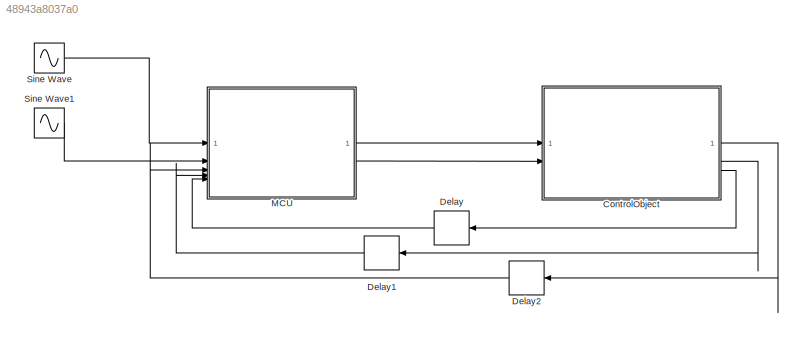
MODEL slx_48943a8037a0
KIND model
CONFIG AbsTol = auto
CONFIG EnableMultiTasking = off
CONFIG FixedStep = 0.001
CONFIG MaxStep = auto
CONFIG MinStep = auto
CONFIG RelTol = 1e-3
CONFIG SampleTimeConstraint = Unconstrained
CONFIG SolverName = ode1be
CONFIG StartTime = 0.0
CONFIG StopTime = 10
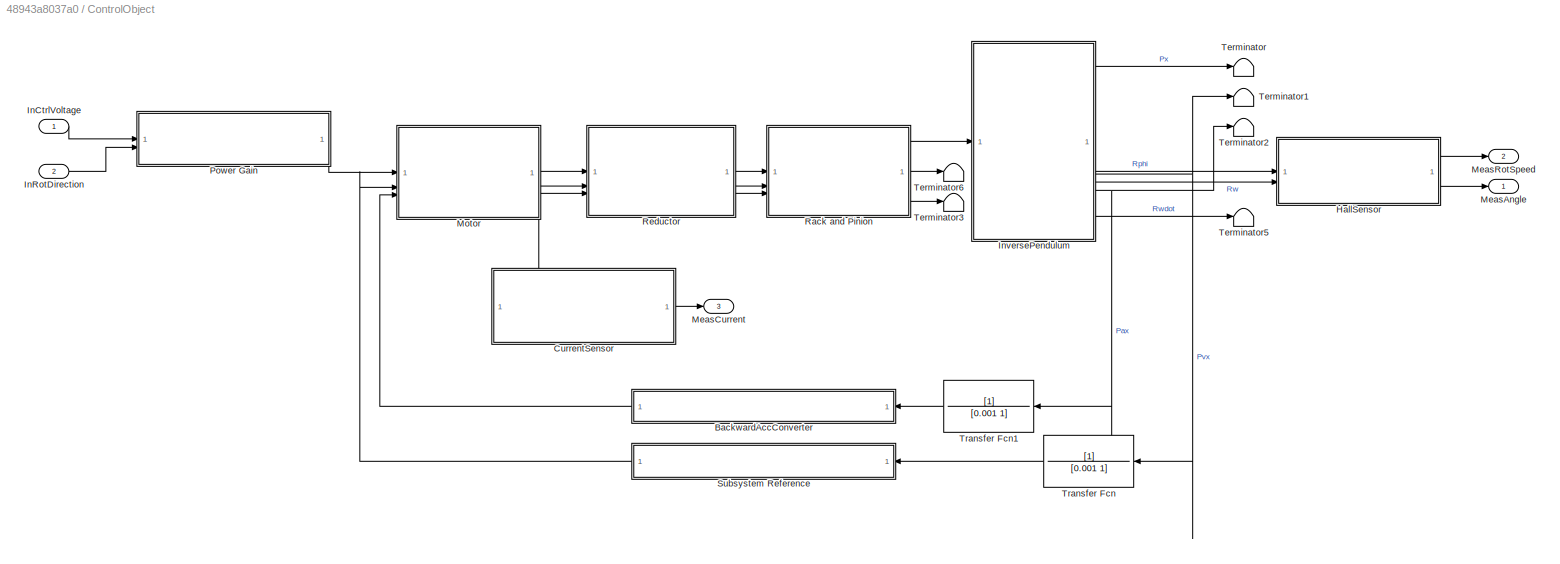
BLOCK [SubSystem] ControlObject
  TreatAsAtomicUnit = on
BLOCK [SubSystem] ControlObject/BackwardAccConverter
  ReferencedSubsystem = BackwardConverter
BLOCK [SubSystem] ControlObject/CurrentSensor
  ReferencedSubsystem = CurrentSensor
BLOCK [SubSystem] ControlObject/HallSensor
  ReferencedSubsystem = HallSensor
BLOCK [Inport] ControlObject/InCtrlVoltage
BLOCK [Inport] ControlObject/InRotDirection
  Port = 2
BLOCK [SubSystem] ControlObject/InversePendulum
  ReferencedSubsystem = InversePendulum
BLOCK [Outport] ControlObject/MeasAngle
BLOCK [Outport] ControlObject/MeasCurrent
  Port = 3
BLOCK [Outport] ControlObject/MeasRotSpeed
  Port = 2
BLOCK [SubSystem] ControlObject/Motor
  NameLocation = top
  PortSchema = {"entries":[{"content":{"sides":[{"content":{"connectorIds":["In1","In2","In3"]},"type":"ConnectorPlacement.EquallySpacedRectSide","uuid":"cf1f6aad-091f-4111-96d2-0ff15b1f9161"},{"content":{"connectorIds":["Out1","Out2","Out3"],"side":"RIGHT"},"type":"ConnectorPlacement.EquallySpacedRectSide","uuid":"4922c734-6a98-471f-9783-d3bdbedc5471"},{"content":{"connectorIds":[],"side":"TOP"},"type":"Connect...<+416ch>
  ReferencedSubsystem = DCMotor
BLOCK [SubSystem] ControlObject/Power Gain
  ReferencedSubsystem = PowerGain
BLOCK [SubSystem] ControlObject/Rack and Pinion
  ReferencedSubsystem = RackAndPinion
BLOCK [SubSystem] ControlObject/Reductor
  ReferencedSubsystem = Reductor
BLOCK [SubSystem] ControlObject/Subsystem Reference
  NameLocation = top
  ReferencedSubsystem = BackwardConverter
BLOCK [Terminator] ControlObject/Terminator
BLOCK [Terminator] ControlObject/Terminator1
BLOCK [Terminator] ControlObject/Terminator2
BLOCK [Terminator] ControlObject/Terminator3
BLOCK [Terminator] ControlObject/Terminator5
BLOCK [Terminator] ControlObject/Terminator6
BLOCK [TransferFcn] ControlObject/Transfer Fcn
  Denominator = [0.001 1]
  NameLocation = top
BLOCK [TransferFcn] ControlObject/Transfer Fcn1
  Denominator = [0.001 1]
  NameLocation = top
BLOCK [Delay] Delay
  DelayLength = 1
  InputPortMap = u0
  NameLocation = top
BLOCK [Delay] Delay1
  DelayLength = 1
  InputPortMap = u0
  NameLocation = top
BLOCK [Delay] Delay2
  DelayLength = 1
  InputPortMap = u0
  NameLocation = top
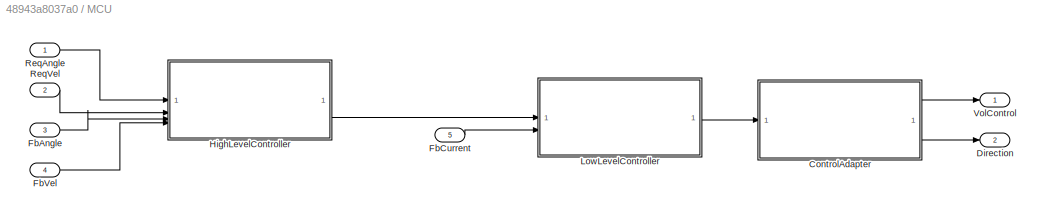
BLOCK [SubSystem] MCU
  TreatAsAtomicUnit = on
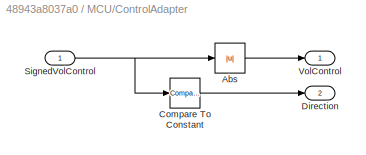
BLOCK [SubSystem] MCU/ControlAdapter
BLOCK [Abs] MCU/ControlAdapter/Abs
  SaturateOnIntegerOverflow = off
BLOCK [Reference] MCU/ControlAdapter/Compare To Constant  REF=simulink/Logic and Bit
Operations/Compare
To Constant
  SourceBlock = simulink/Logic and Bit\nOperations/Compare\nTo Constant
  SourceType = Compare To Constant
BLOCK [Outport] MCU/ControlAdapter/Direction
  Port = 2
BLOCK [Inport] MCU/ControlAdapter/SignedVolControl
BLOCK [Outport] MCU/ControlAdapter/VolControl
BLOCK [Outport] MCU/Direction
  Port = 2
BLOCK [Inport] MCU/FbAngle
  Port = 3
BLOCK [Inport] MCU/FbCurrent
  Port = 5
BLOCK [Inport] MCU/FbVel
  Port = 4
BLOCK [SubSystem] MCU/HighLevelController
  ReferencedSubsystem = HighLevelController
BLOCK [SubSystem] MCU/LowLevelController
  ReferencedSubsystem = LowLevelController
BLOCK [Inport] MCU/ReqAngle
BLOCK [Inport] MCU/ReqVel
  Port = 2
BLOCK [Outport] MCU/VolControl
BLOCK [Sin] Sine Wave
  Amplitude = 0.5
  Frequency = 10
  SampleTime = 0
BLOCK [Sin] Sine Wave1
  Amplitude = 0.5
  Frequency = 10
  Phase = pi/2
  SampleTime = 0
LINE ControlObject/BackwardAccConverter:1 -> ControlObject/Motor:3
LINE ControlObject/CurrentSensor:1 -> ControlObject/MeasCurrent:1
LINE ControlObject/HallSensor:1 -> ControlObject/MeasRotSpeed:1
LINE ControlObject/HallSensor:2 -> ControlObject/MeasAngle:1
LINE ControlObject/InCtrlVoltage:1 -> ControlObject/Power Gain:1
LINE ControlObject/InRotDirection:1 -> ControlObject/Power Gain:2
LINE ControlObject/InversePendulum:1 -> ControlObject/Terminator:1
NET ControlObject/InversePendulum:2 -> ControlObject/Terminator1:1, ControlObject/Transfer Fcn:1
NET ControlObject/InversePendulum:3 -> ControlObject/Terminator2:1, ControlObject/Transfer Fcn1:1
LINE ControlObject/InversePendulum:4 -> ControlObject/HallSensor:1
LINE ControlObject/InversePendulum:5 -> ControlObject/HallSensor:2
LINE ControlObject/InversePendulum:6 -> ControlObject/Terminator5:1
LINE ControlObject/Motor:1 -> ControlObject/Reductor:1
LINE ControlObject/Motor:2 -> ControlObject/Reductor:2
LINE ControlObject/Motor:3 -> ControlObject/Reductor:3
LINE ControlObject/Motor:4 -> ControlObject/CurrentSensor:1
LINE ControlObject/Power Gain:1 -> ControlObject/Motor:1
LINE ControlObject/Rack and Pinion:1 -> ControlObject/InversePendulum:1
LINE ControlObject/Rack and Pinion:2 -> ControlObject/Terminator6:1
LINE ControlObject/Rack and Pinion:3 -> ControlObject/Terminator3:1
LINE ControlObject/Reductor:1 -> ControlObject/Rack and Pinion:1
LINE ControlObject/Reductor:2 -> ControlObject/Rack and Pinion:2
LINE ControlObject/Reductor:3 -> ControlObject/Rack and Pinion:3
LINE ControlObject/Subsystem Reference:1 -> ControlObject/Motor:2
LINE ControlObject/Transfer Fcn1:1 -> ControlObject/BackwardAccConverter:1
LINE ControlObject/Transfer Fcn:1 -> ControlObject/Subsystem Reference:1
LINE ControlObject:1 -> Delay2:1
LINE ControlObject:2 -> Delay1:1
LINE ControlObject:3 -> Delay:1
LINE Delay1:1 -> MCU:4
LINE Delay2:1 -> MCU:3
LINE Delay:1 -> MCU:5
LINE MCU/ControlAdapter/Abs:1 -> MCU/ControlAdapter/VolControl:1
LINE MCU/ControlAdapter/Compare To Constant:1 -> MCU/ControlAdapter/Direction:1
NET MCU/ControlAdapter/SignedVolControl:1 -> MCU/ControlAdapter/Abs:1, MCU/ControlAdapter/Compare To Constant:1
LINE MCU/ControlAdapter:1 -> MCU/VolControl:1
LINE MCU/ControlAdapter:2 -> MCU/Direction:1
LINE MCU/FbAngle:1 -> MCU/HighLevelController:3
LINE MCU/FbCurrent:1 -> MCU/LowLevelController:2
LINE MCU/FbVel:1 -> MCU/HighLevelController:4
LINE MCU/HighLevelController:1 -> MCU/LowLevelController:1
LINE MCU/LowLevelController:1 -> MCU/ControlAdapter:1
LINE MCU/ReqAngle:1 -> MCU/HighLevelController:1
LINE MCU/ReqVel:1 -> MCU/HighLevelController:2
LINE MCU:1 -> ControlObject:1
LINE MCU:2 -> ControlObject:2
LINE Sine Wave1:1 -> MCU:2
LINE Sine Wave:1 -> MCU:1
note: NET lines group one-source signal fan-out (src -> all destinations, sorted); 1:1 wires keep LINE
